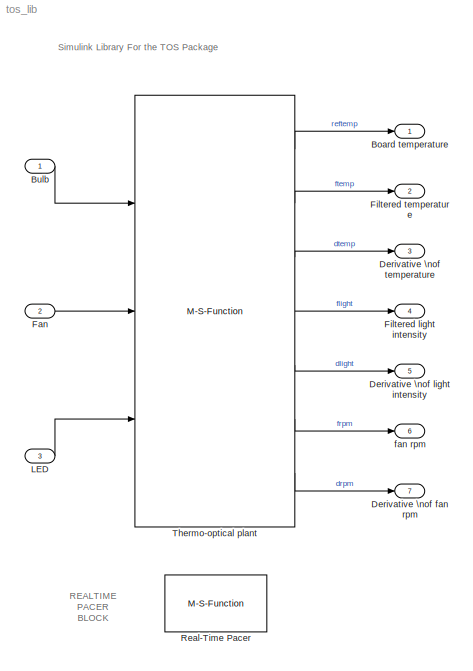
MODEL tos_lib
KIND library
BLOCK [Outport] Board temperature
  IconDisplay = Port number
  OutDataType = fixdt(1, 16)
  OutScaling = 2^0
  SID = 24
BLOCK [Inport] Bulb
  IconDisplay = Port number
  OutDataType = fixdt(1, 16)
  OutScaling = 2^0
  SID = 20
BLOCK [Outport] Derivative \nof fan rpm
  IconDisplay = Port number
  OutDataType = fixdt(1, 16)
  OutScaling = 2^0
  Port = 7
  SID = 30
BLOCK [Outport] Derivative \nof light intensity
  IconDisplay = Port number
  OutDataType = fixdt(1, 16)
  OutScaling = 2^0
  Port = 5
  SID = 28
BLOCK [Outport] Derivative \nof temperature
  IconDisplay = Port number
  OutDataType = fixdt(1, 16)
  OutScaling = 2^0
  Port = 3
  SID = 26
BLOCK [Inport] Fan
  IconDisplay = Port number
  OutDataType = fixdt(1, 16)
  OutScaling = 2^0
  Port = 2
  SID = 21
BLOCK [Outport] Filtered light intensity
  IconDisplay = Port number
  OutDataType = fixdt(1, 16)
  OutScaling = 2^0
  Port = 4
  SID = 27
BLOCK [Outport] Filtered temperature
  IconDisplay = Port number
  OutDataType = fixdt(1, 16)
  OutScaling = 2^0
  Port = 2
  SID = 25
BLOCK [Inport] LED
  IconDisplay = Port number
  OutDataType = fixdt(1, 16)
  OutScaling = 2^0
  Port = 3
  SID = 22
BLOCK [M-S-Function] Real-Time Pacer
  FunctionName = msfun_realtime_pacer
  MaskDescription = Slow down a simulation to track real (i.e., wall clock) elapsed time. \n\n\"Speedup\" specifies the ratio between simulation time and real time \n Speedup = N => N sec. of simulation time per sec. of real time\n Speedup can be fractional (e.g., 0.5, 1.3). \n Speedup = inf => allow simulation to run at full speed\n\nClick on the Help button for details.
  MaskDisplay = fprintf('Real-Time Pacer\\nSpeedup = %g', simTimePerRealTime)
  MaskEnableString = on
  MaskHelp = web('realtime_pacer_help.html', '-helpbrowser')
  MaskIconFrame = on
  MaskIconOpaque = on
  MaskIconRotate = none
  MaskIconUnits = normalized
  MaskPortRotate = default
  MaskPromptString = Speedup (Simulation Time / Real Time):
  MaskStyleString = edit
  MaskToolTipString = on
  MaskTunableValueString = on
  MaskType = RealTime_Pacer
  MaskValueString = 1
  MaskVariables = simTimePerRealTime=@1;
  MaskVisibilityString = on
  Parameters = simTimePerRealTime
  Ports = []
  SID = 9
BLOCK [M-S-Function] Thermo-optical plant
  FunctionName = tos10
  Parameters = Ts,com,baud,fTt,fTl,fTf
  Ports = [3, 7]
  SID = 23
BLOCK [Outport] fan rpm
  IconDisplay = Port number
  OutDataType = fixdt(1, 16)
  OutScaling = 2^0
  Port = 6
  SID = 29
ANNOTATION (root): REALTIME\nPACER\nBLOCK
ANNOTATION (root): Simulink Library For the TOS Package
LINE Bulb:1 -> Thermo-optical plant:1
LINE Fan:1 -> Thermo-optical plant:2
LINE LED:1 -> Thermo-optical plant:3
LINE Thermo-optical plant:1 -> Board temperature:1
LINE Thermo-optical plant:2 -> Filtered temperature:1
LINE Thermo-optical plant:3 -> Derivative \nof temperature:1
LINE Thermo-optical plant:4 -> Filtered light intensity:1
LINE Thermo-optical plant:5 -> Derivative \nof light intensity:1
LINE Thermo-optical plant:6 -> fan rpm:1
LINE Thermo-optical plant:7 -> Derivative \nof fan rpm:1
